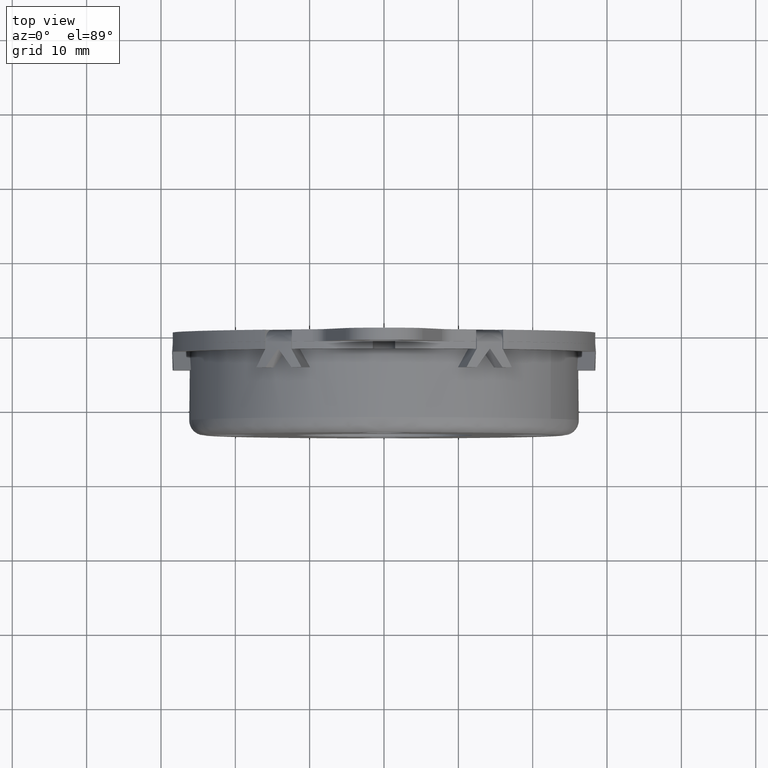
[diagram: clean part render]
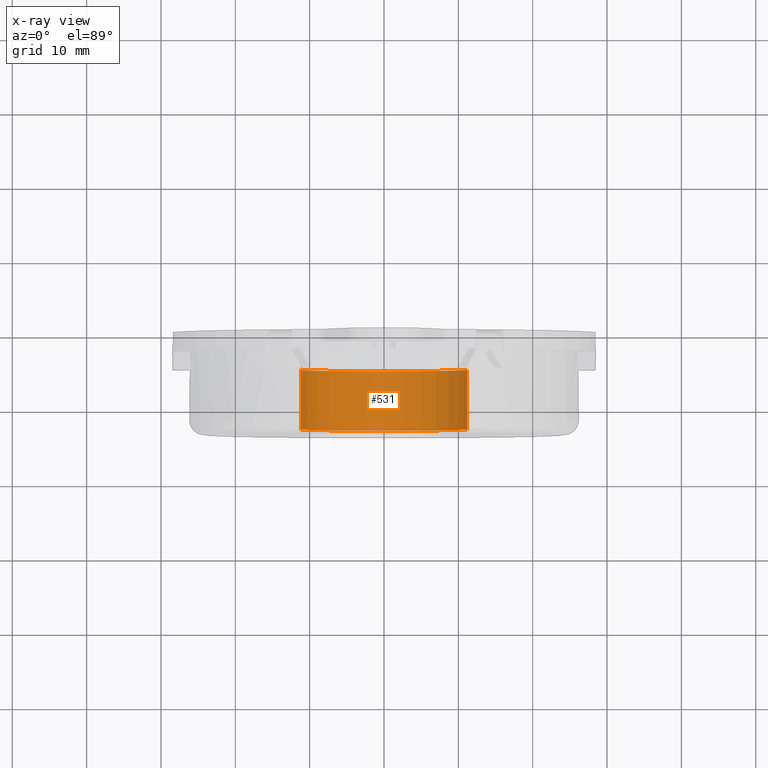
[diagram: x-ray — body ghosted, one internal face saturated and labeled with its STEP entity id]
A machine part, top view, then the same camera in x-ray: the body is ghosted and one INTERNAL B-rep face — a face not visible from any outside direction — is saturated and labeled: STEP entity #531.
In plain terms, the highlighted face is a freeform B-spline surface patch.
Its self-contained STEP definition (entity closure, byte-faithful):
#198=CARTESIAN_POINT('',(0.0,-5.0,-11.199999999999999));
#199=VERTEX_POINT('',#198);
#200=CARTESIAN_POINT('',(11.179109919790950,-4.999999999999988,-0.683740741233909));
#201=VERTEX_POINT('',#200);
#202=CARTESIAN_POINT('',(0.0,-5.0,-11.199999999999999));
#203=CARTESIAN_POINT('',(10.535910689066414,-4.999999999999994,-11.199999999999987));
#204=CARTESIAN_POINT('',(11.179109919790955,-4.999999999999988,-0.683740741233909));
#212=(BOUNDED_CURVE()B_SPLINE_CURVE(2,(#202,#203,#204),.UNSPECIFIED.,.F.,.U.)B_SPLINE_CURVE_WITH_KNOTS((3,3),(0.0,0.239333007026776),.UNSPECIFIED.)CURVE()GEOMETRIC_REPRESENTATION_ITEM()RATIONAL_B_SPLINE_CURVE((1.0,0.719603940814500,0.976072137655587))REPRESENTATION_ITEM(''));
#213=EDGE_CURVE('',#199,#201,#212,.T.);
#215=CARTESIAN_POINT('',(-11.179109919790950,-4.999999999999988,0.683740741233911));
#216=VERTEX_POINT('',#215);
#217=CARTESIAN_POINT('',(-11.179109919790955,-4.999999999999988,0.683740741233911));
#218=CARTESIAN_POINT('',(-11.199999999999628,-4.999999999999987,0.342189494098119));
#219=CARTESIAN_POINT('',(-11.199999999999630,-4.999999999999988,-1.931834E-014));
#220=CARTESIAN_POINT('',(-11.199999999999820,-4.999999999999996,-11.200000000000008));
#221=CARTESIAN_POINT('',(0.0,-5.0,-11.199999999999999));
#229=(BOUNDED_CURVE()B_SPLINE_CURVE(2,(#217,#218,#219,#220,#221),.UNSPECIFIED.,.F.,.U.)B_SPLINE_CURVE_WITH_KNOTS((3,2,3),(0.739333007026776,0.750000000000000,1.0),.UNSPECIFIED.)CURVE()GEOMETRIC_REPRESENTATION_ITEM()RATIONAL_B_SPLINE_CURVE((0.976072137655587,0.987502840372047,1.0,0.707106781186547,1.0))REPRESENTATION_ITEM(''));
#230=EDGE_CURVE('',#216,#199,#229,.T.);
#465=CARTESIAN_POINT('',(-11.179109742324910,-4.799999999999999,0.683743642790398));
#466=CARTESIAN_POINT('',(-11.862853385115304,-4.800000000000000,-10.495366099534507));
#467=CARTESIAN_POINT('',(-0.683743642790398,-4.799999999999999,-11.179109742324910));
#468=CARTESIAN_POINT('',(10.495366099534507,-4.800000000000000,-11.862853385115304));
#469=CARTESIAN_POINT('',(11.179109742324910,-4.799999999999999,-0.683743642790398));
#470=CARTESIAN_POINT('',(-11.179109742324910,-13.205000000000000,0.683743642790398));
#471=CARTESIAN_POINT('',(-11.862853385115304,-13.205000000000002,-10.495366099534507));
#472=CARTESIAN_POINT('',(-0.683743642790398,-13.205000000000000,-11.179109742324910));
#473=CARTESIAN_POINT('',(10.495366099534507,-13.205000000000002,-11.862853385115304));
#474=CARTESIAN_POINT('',(11.179109742324910,-13.205000000000000,-0.683743642790398));
#482=(BOUNDED_SURFACE()B_SPLINE_SURFACE(2,1,((#465,#470),(#466,#471),(#467,#472),(#468,#473),(#469,#474)),.UNSPECIFIED.,.F.,.F.,.U.)B_SPLINE_SURFACE_WITH_KNOTS((3,2,3),(2,2),(0.0,18.556767594314650,37.113535188629307),(0.0,8.405000000000005),.UNSPECIFIED.)GEOMETRIC_REPRESENTATION_ITEM()RATIONAL_B_SPLINE_SURFACE(((1.0,1.0),(0.707106781186548,0.707106781186548),(1.0,1.0),(0.707106781186548,0.707106781186548),(1.0,1.0)))REPRESENTATION_ITEM('')SURFACE());
#483=ORIENTED_EDGE('',*,*,#230,.T.);
#484=ORIENTED_EDGE('',*,*,#213,.T.);
#485=CARTESIAN_POINT('',(11.179109917648891,-13.0,-0.683740776256623));
#486=VERTEX_POINT('',#485);
#487=CARTESIAN_POINT('',(11.179109919790950,-4.999999999999988,-0.683740741233909));
#488=CARTESIAN_POINT('',(11.179109917648891,-13.0,-0.683740776256623));
#489=QUASI_UNIFORM_CURVE('',1,(#487,#488),.UNSPECIFIED.,.F.,.U.);
#490=EDGE_CURVE('',#201,#486,#489,.T.);
#491=ORIENTED_EDGE('',*,*,#490,.T.);
#492=CARTESIAN_POINT('',(0.0,-13.0,-11.199999999999999));
#493=VERTEX_POINT('',#492);
#494=CARTESIAN_POINT('',(0.0,-13.0,-11.199999999999999));
#495=CARTESIAN_POINT('',(10.535910655997087,-13.0,-11.199999999999989));
#496=CARTESIAN_POINT('',(11.179109917648885,-13.0,-0.683740776256623));
#504=(BOUNDED_CURVE()B_SPLINE_CURVE(2,(#494,#495,#496),.UNSPECIFIED.,.F.,.U.)B_SPLINE_CURVE_WITH_KNOTS((3,3),(0.500000000000000,0.739333006486209),.UNSPECIFIED.)CURVE()GEOMETRIC_REPRESENTATION_ITEM()RATIONAL_B_SPLINE_CURVE((1.0,0.719603941447814,0.976072136497049))REPRESENTATION_ITEM(''));
#505=EDGE_CURVE('',#493,#486,#504,.T.);
#506=ORIENTED_EDGE('',*,*,#505,.F.);
#507=CARTESIAN_POINT('',(-11.179109917648891,-13.0,0.683740776256623));
#508=VERTEX_POINT('',#507);
#509=CARTESIAN_POINT('',(-11.179109917648885,-13.0,0.683740776256623));
#510=CARTESIAN_POINT('',(-11.200000000000003,-13.000000000000002,0.342189511658595));
#511=CARTESIAN_POINT('',(-11.199999999999999,-13.0,0.0));
#512=CARTESIAN_POINT('',(-11.199999999999999,-13.0,-11.199999999999999));
#513=CARTESIAN_POINT('',(0.0,-13.0,-11.199999999999999));
#521=(BOUNDED_CURVE()B_SPLINE_CURVE(2,(#509,#510,#511,#512,#513),.UNSPECIFIED.,.F.,.U.)B_SPLINE_CURVE_WITH_KNOTS((3,2,3),(0.239333006486209,0.250000000000000,0.500000000000000),.UNSPECIFIED.)CURVE()GEOMETRIC_REPRESENTATION_ITEM()RATIONAL_B_SPLINE_CURVE((0.976072136497049,0.987502839738734,1.0,0.707106781186547,1.0))REPRESENTATION_ITEM(''));
#522=EDGE_CURVE('',#508,#493,#521,.T.);
#523=ORIENTED_EDGE('',*,*,#522,.F.);
#524=CARTESIAN_POINT('',(-11.179109919790950,-4.999999999999988,0.683740741233911));
#525=CARTESIAN_POINT('',(-11.179109917648891,-13.0,0.683740776256623));
#526=QUASI_UNIFORM_CURVE('',1,(#524,#525),.UNSPECIFIED.,.F.,.U.);
#527=EDGE_CURVE('',#216,#508,#526,.T.);
#528=ORIENTED_EDGE('',*,*,#527,.F.);
#529=EDGE_LOOP('',(#483,#484,#491,#506,#523,#528));
#530=FACE_OUTER_BOUND('',#529,.T.);
#531=ADVANCED_FACE('',(#530),#482,.T.);